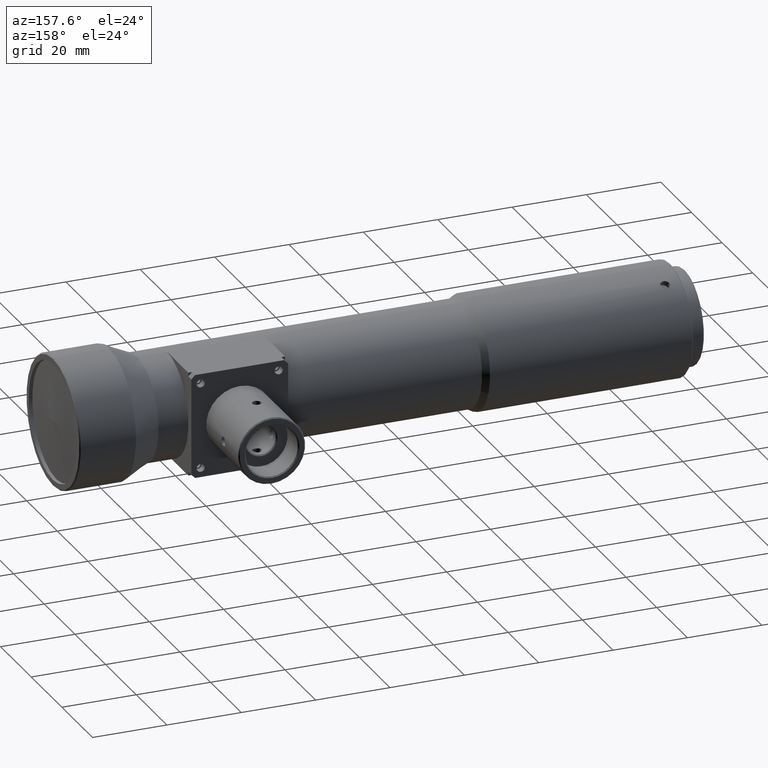
[diagram: clean part render]
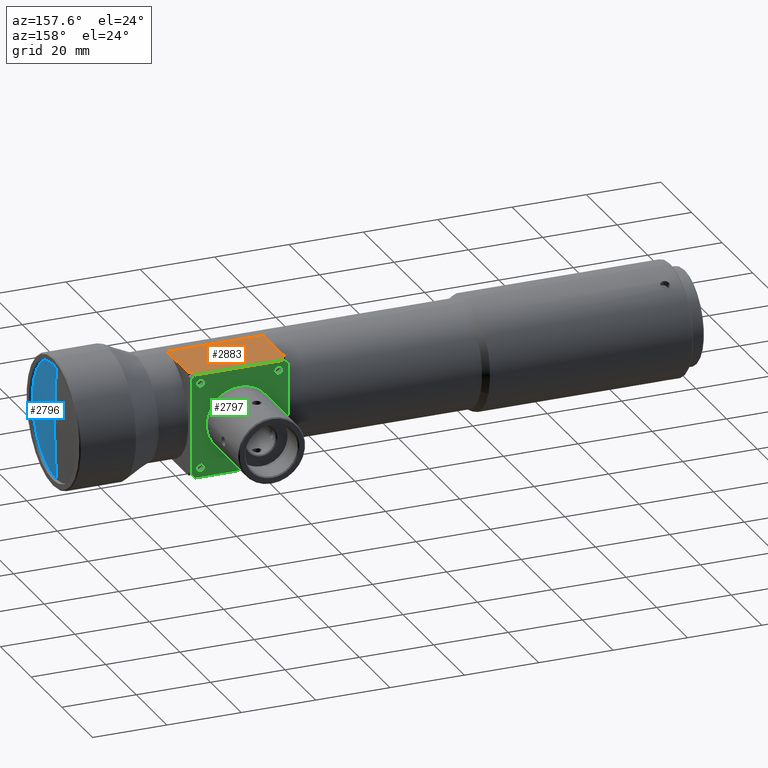
[diagram: same view with three faces highlighted in distinct colors, each labeled with its STEP entity id]
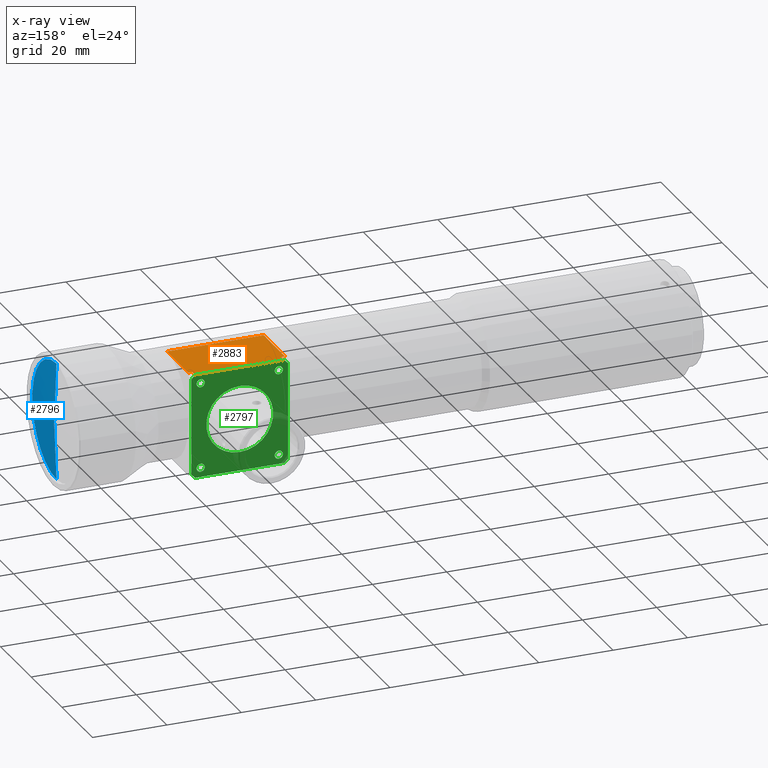
[diagram: x-ray of the same camera — body ghosted, the three highlighted faces saturated]
A machine part, auxiliary view with three faces highlighted in distinct colors.
The next image is the same camera in x-ray (body ghosted, the three faces saturated) — at least one of them is partly hidden behind the body in this view.
Their STEP definitions:

[orange] entity #2883 — the highlighted planar face has unit normal (0, 0, -1).
#29 = EDGE_CURVE ( 'NONE', #3908, #4086, #987, .T. ) ;
#36 = EDGE_CURVE ( 'NONE', #3993, #4086, #972, .T. ) ;
#37 = EDGE_CURVE ( 'NONE', #4080, #185, #969, .T. ) ;
#44 = EDGE_CURVE ( 'NONE', #3980, #3908, #962, .T. ) ;
#185 = VERTEX_POINT ( 'NONE', #2039 ) ;
#254 = FACE_OUTER_BOUND ( 'NONE', #1351, .T. ) ;
#460 = AXIS2_PLACEMENT_3D ( 'NONE', #3363, #3244, #3245 ) ;
#516 = EDGE_CURVE ( 'NONE', #4120, #3993, #1037, .T. ) ;
#551 = EDGE_CURVE ( 'NONE', #185, #4120, #1097, .T. ) ;
#553 = EDGE_CURVE ( 'NONE', #4002, #4080, #1050, .T. ) ;
#653 = EDGE_CURVE ( 'NONE', #3980, #4002, #1236, .T. ) ;
#937 = VECTOR ( 'NONE', #2784, 1000.000000000000000 ) ;
#958 = VECTOR ( 'NONE', #2282, 1000.000000000000000 ) ;
#962 = LINE ( 'NONE', #1895, #937 ) ;
#969 = LINE ( 'NONE', #2044, #958 ) ;
#972 = LINE ( 'NONE', #2168, #974 ) ;
#974 = VECTOR ( 'NONE', #2162, 1000.000000000000000 ) ;
#987 = LINE ( 'NONE', #2050, #988 ) ;
#988 = VECTOR ( 'NONE', #1929, 1000.000000000000000 ) ;
#1022 = VECTOR ( 'NONE', #2678, 1000.000000000000000 ) ;
#1037 = LINE ( 'NONE', #2721, #1115 ) ;
#1050 = LINE ( 'NONE', #2673, #1133 ) ;
#1097 = LINE ( 'NONE', #2679, #1022 ) ;
#1115 = VECTOR ( 'NONE', #2720, 1000.000000000000000 ) ;
#1133 = VECTOR ( 'NONE', #2663, 1000.000000000000000 ) ;
#1235 = VECTOR ( 'NONE', #2339, 1000.000000000000000 ) ;
#1236 = LINE ( 'NONE', #2341, #1235 ) ;
#1351 = EDGE_LOOP ( 'NONE', ( #1591, #1601, #1848, #1739, #1853, #1714, #1580, #1428 ) ) ;
#1428 = ORIENTED_EDGE ( 'NONE', *, *, #29, .F. ) ;
#1580 = ORIENTED_EDGE ( 'NONE', *, *, #36, .T. ) ;
#1591 = ORIENTED_EDGE ( 'NONE', *, *, #44, .F. ) ;
#1601 = ORIENTED_EDGE ( 'NONE', *, *, #653, .T. ) ;
#1714 = ORIENTED_EDGE ( 'NONE', *, *, #516, .T. ) ;
#1739 = ORIENTED_EDGE ( 'NONE', *, *, #37, .T. ) ;
#1848 = ORIENTED_EDGE ( 'NONE', *, *, #553, .T. ) ;
#1853 = ORIENTED_EDGE ( 'NONE', *, *, #551, .T. ) ;
#1895 = CARTESIAN_POINT ( 'NONE',  ( 2.300000000000001600, 7.000000000000000000, 14.00000000000000000 ) ) ;
#1929 = DIRECTION ( 'NONE',  ( -1.000000000000000000, 0.0000000000000000000, 0.0000000000000000000 ) ) ;
#2039 = CARTESIAN_POINT ( 'NONE',  ( -22.70000000300000000, 16.00000000000000000, 14.00000000000000000 ) ) ;
#2044 = CARTESIAN_POINT ( 'NONE',  ( -10.69999999999999900, 16.00000000000000000, 14.00000000000000000 ) ) ;
#2050 = CARTESIAN_POINT ( 'NONE',  ( -10.69999999999999900, 0.0000000000000000000, 14.00000000000000000 ) ) ;
#2162 = DIRECTION ( 'NONE',  ( 0.0000000000000000000, -1.000000000000000000, -0.0000000000000000000 ) ) ;
#2168 = CARTESIAN_POINT ( 'NONE',  ( -23.69999999999999900, 6.958000000000000200, 14.00000000000000000 ) ) ;
#2282 = DIRECTION ( 'NONE',  ( -1.000000000000000000, 0.0000000000000000000, 0.0000000000000000000 ) ) ;
#2339 = DIRECTION ( 'NONE',  ( -1.000000000000000000, 0.0000000000000000000, 0.0000000000000000000 ) ) ;
#2341 = CARTESIAN_POINT ( 'NONE',  ( -10.69999999999999900, 14.00000000000000000, 14.00000000000000000 ) ) ;
#2663 = DIRECTION ( 'NONE',  ( 0.0000000000000000000, 1.000000000000000000, 0.0000000000000000000 ) ) ;
#2673 = CARTESIAN_POINT ( 'NONE',  ( 1.300000000000000700, 15.00000000000000000, 14.00000000000000000 ) ) ;
#2678 = DIRECTION ( 'NONE',  ( 0.0000000000000000000, -1.000000000000000000, -0.0000000000000000000 ) ) ;
#2679 = CARTESIAN_POINT ( 'NONE',  ( -22.69999999999999900, 15.00000000000000000, 14.00000000000000000 ) ) ;
#2720 = DIRECTION ( 'NONE',  ( -1.000000000000000000, 0.0000000000000000000, 0.0000000000000000000 ) ) ;
#2721 = CARTESIAN_POINT ( 'NONE',  ( -10.69999999999999900, 14.00000000000000000, 14.00000000000000000 ) ) ;
#2784 = DIRECTION ( 'NONE',  ( 0.0000000000000000000, -1.000000000000000000, 0.0000000000000000000 ) ) ;
#2883 = ADVANCED_FACE ( 'NONE', ( #254 ), #3260, .F. ) ;
#3009 = CARTESIAN_POINT ( 'NONE',  ( 2.300000000000001600, -1.257110798002262500E-009, 14.00000000000000000 ) ) ;
#3140 = CARTESIAN_POINT ( 'NONE',  ( 2.300000000000003400, 14.00000000000000000, 14.00000000000000000 ) ) ;
#3150 = CARTESIAN_POINT ( 'NONE',  ( -23.70000000000000300, 14.00000000000000000, 14.00000000000000000 ) ) ;
#3167 = CARTESIAN_POINT ( 'NONE',  ( 1.300000000000000700, 14.00000000000000000, 14.00000000000000000 ) ) ;
#3169 = CARTESIAN_POINT ( 'NONE',  ( 1.300000003000000300, 16.00000000000000000, 14.00000000000000000 ) ) ;
#3185 = CARTESIAN_POINT ( 'NONE',  ( -22.69999999999999900, 14.00000000000000000, 14.00000000000000000 ) ) ;
#3223 = CARTESIAN_POINT ( 'NONE',  ( -23.69999999700000300, -1.257110798002262500E-009, 14.00000000000000000 ) ) ;
#3244 = DIRECTION ( 'NONE',  ( 0.0000000000000000000, 0.0000000000000000000, -1.000000000000000000 ) ) ;
#3245 = DIRECTION ( 'NONE',  ( 0.0000000000000000000, -1.000000000000000000, 0.0000000000000000000 ) ) ;
#3260 = PLANE ( 'NONE',  #460 ) ;
#3363 = CARTESIAN_POINT ( 'NONE',  ( 2.300000000000001600, 14.00000000000000000, 14.00000000000000000 ) ) ;
#3908 = VERTEX_POINT ( 'NONE', #3009 ) ;
#3980 = VERTEX_POINT ( 'NONE', #3140 ) ;
#3993 = VERTEX_POINT ( 'NONE', #3150 ) ;
#4002 = VERTEX_POINT ( 'NONE', #3167 ) ;
#4080 = VERTEX_POINT ( 'NONE', #3169 ) ;
#4086 = VERTEX_POINT ( 'NONE', #3223 ) ;
#4120 = VERTEX_POINT ( 'NONE', #3185 ) ;

[blue] entity #2796 — the highlighted conical surface has half-angle 87.69 deg.
#5 = VERTEX_POINT ( 'NONE', #2258 ) ;
#188 = VERTEX_POINT ( 'NONE', #2025 ) ;
#192 = VERTEX_POINT ( 'NONE', #2358 ) ;
#400 = FACE_OUTER_BOUND ( 'NONE', #1385, .T. ) ;
#685 = EDGE_CURVE ( 'NONE', #5, #188, #1208, .T. ) ;
#785 = EDGE_CURVE ( 'NONE', #192, #188, #1196, .T. ) ;
#808 = EDGE_CURVE ( 'NONE', #192, #5, #1180, .T. ) ;
#897 = AXIS2_PLACEMENT_3D ( 'NONE', #2973, #2949, #2986 ) ;
#905 = AXIS2_PLACEMENT_3D ( 'NONE', #2103, #2102, #2101 ) ;
#1175 = VECTOR ( 'NONE', #3290, 1000.000000000000100 ) ;
#1180 = LINE ( 'NONE', #3284, #1175 ) ;
#1196 = LINE ( 'NONE', #3472, #1197 ) ;
#1197 = VECTOR ( 'NONE', #3170, 1000.000000000000100 ) ;
#1208 = CIRCLE ( 'NONE', #905, 15.75000000000000000 ) ;
#1385 = EDGE_LOOP ( 'NONE', ( #1786, #1781, #1866 ) ) ;
#1781 = ORIENTED_EDGE ( 'NONE', *, *, #785, .T. ) ;
#1786 = ORIENTED_EDGE ( 'NONE', *, *, #808, .F. ) ;
#1866 = ORIENTED_EDGE ( 'NONE', *, *, #685, .F. ) ;
#2025 = CARTESIAN_POINT ( 'NONE',  ( 31.98690305889818200, 0.0000000000000000000, 15.75000000000000000 ) ) ;
#2101 = DIRECTION ( 'NONE',  ( 0.0000000000000000000, 0.0000000000000000000, 1.000000000000000000 ) ) ;
#2102 = DIRECTION ( 'NONE',  ( -1.000000000000000000, -0.0000000000000000000, -0.0000000000000000000 ) ) ;
#2103 = CARTESIAN_POINT ( 'NONE',  ( 31.98690305889818200, 0.0000000000000000000, 0.0000000000000000000 ) ) ;
#2258 = CARTESIAN_POINT ( 'NONE',  ( 31.98690305889818200, 1.928818708657081300E-015, -15.75000000000000000 ) ) ;
#2358 = CARTESIAN_POINT ( 'NONE',  ( 32.62232883581750500, 1.409462824231155800E-015, 0.0000000000000000000 ) ) ;
#2795 = CONICAL_SURFACE ( 'NONE', #897, 24786.52987034813500, 1.530473700953873100 ) ;
#2796 = ADVANCED_FACE ( 'NONE', ( #400 ), #2795, .T. ) ;
#2949 = DIRECTION ( 'NONE',  ( -1.000000000000000000, -0.0000000000000000000, -0.0000000000000000000 ) ) ;
#2973 = CARTESIAN_POINT ( 'NONE',  ( -967.3776711641825200, 0.0000000000000000000, 0.0000000000000000000 ) ) ;
#2986 = DIRECTION ( 'NONE',  ( 0.0000000000000000000, 0.0000000000000000000, 1.000000000000000000 ) ) ;
#3170 = DIRECTION ( 'NONE',  ( -0.04031169987461043900, 0.0000000000000000000, 0.9991871530665409300 ) ) ;
#3284 = CARTESIAN_POINT ( 'NONE',  ( 32.62232883581750500, 1.726094136211873400E-031, -1.409462824231155800E-015 ) ) ;
#3290 = DIRECTION ( 'NONE',  ( -0.04031169987461043900, 1.223651348752095700E-016, -0.9991871530665409300 ) ) ;
#3472 = CARTESIAN_POINT ( 'NONE',  ( 32.62232883581750500, 0.0000000000000000000, 1.409462824231155800E-015 ) ) ;

[green] entity #2797 — the highlighted planar face has unit normal (0, -1, 0).
#13 = FACE_BOUND ( 'NONE', #3894, .T. ) ;
#37 = EDGE_CURVE ( 'NONE', #4080, #185, #969, .T. ) ;
#40 = EDGE_CURVE ( 'NONE', #3973, #105, #971, .T. ) ;
#48 = EDGE_CURVE ( 'NONE', #4115, #4119, #977, .T. ) ;
#53 = EDGE_CURVE ( 'NONE', #3913, #3954, #926, .T. ) ;
#105 = VERTEX_POINT ( 'NONE', #1982 ) ;
#159 = VERTEX_POINT ( 'NONE', #1949 ) ;
#185 = VERTEX_POINT ( 'NONE', #2039 ) ;
#381 = FACE_OUTER_BOUND ( 'NONE', #3921, .T. ) ;
#399 = FACE_BOUND ( 'NONE', #1444, .T. ) ;
#412 = VERTEX_POINT ( 'NONE', #1910 ) ;
#426 = EDGE_CURVE ( 'NONE', #4109, #412, #975, .T. ) ;
#432 = AXIS2_PLACEMENT_3D ( 'NONE', #3042, #3035, #3348 ) ;
#507 = EDGE_CURVE ( 'NONE', #3913, #105, #976, .T. ) ;
#534 = EDGE_CURVE ( 'NONE', #4083, #3909, #1056, .T. ) ;
#535 = EDGE_CURVE ( 'NONE', #3937, #3947, #1042, .T. ) ;
#536 = EDGE_CURVE ( 'NONE', #3934, #3986, #1090, .T. ) ;
#547 = EDGE_CURVE ( 'NONE', #4115, #3954, #1045, .T. ) ;
#590 = EDGE_CURVE ( 'NONE', #3947, #3937, #1039, .T. ) ;
#594 = EDGE_CURVE ( 'NONE', #3909, #4083, #1070, .T. ) ;
#633 = EDGE_CURVE ( 'NONE', #3986, #3934, #1113, .T. ) ;
#643 = EDGE_CURVE ( 'NONE', #3973, #185, #1021, .T. ) ;
#646 = EDGE_CURVE ( 'NONE', #159, #3912, #1206, .T. ) ;
#661 = EDGE_CURVE ( 'NONE', #3912, #159, #1310, .T. ) ;
#713 = EDGE_CURVE ( 'NONE', #412, #4109, #1255, .T. ) ;
#742 = AXIS2_PLACEMENT_3D ( 'NONE', #2356, #2357, #2355 ) ;
#743 = AXIS2_PLACEMENT_3D ( 'NONE', #2388, #2387, #2386 ) ;
#755 = AXIS2_PLACEMENT_3D ( 'NONE', #2448, #2447, #2446 ) ;
#757 = AXIS2_PLACEMENT_3D ( 'NONE', #2457, #2456, #2455 ) ;
#767 = AXIS2_PLACEMENT_3D ( 'NONE', #2700, #2696, #2698 ) ;
#768 = AXIS2_PLACEMENT_3D ( 'NONE', #2704, #2702, #2701 ) ;
#769 = AXIS2_PLACEMENT_3D ( 'NONE', #2710, #2709, #2707 ) ;
#835 = AXIS2_PLACEMENT_3D ( 'NONE', #1891, #2794, #2793 ) ;
#873 = AXIS2_PLACEMENT_3D ( 'NONE', #2305, #2303, #2304 ) ;
#892 = EDGE_CURVE ( 'NONE', #4080, #4119, #1184, .T. ) ;
#895 = AXIS2_PLACEMENT_3D ( 'NONE', #3171, #3726, #3093 ) ;
#921 = VECTOR ( 'NONE', #2133, 1000.000000000000000 ) ;
#926 = LINE ( 'NONE', #1996, #921 ) ;
#935 = VECTOR ( 'NONE', #2274, 1000.000000000000000 ) ;
#941 = VECTOR ( 'NONE', #1920, 1000.000000000000000 ) ;
#947 = FACE_BOUND ( 'NONE', #1453, .T. ) ;
#958 = VECTOR ( 'NONE', #2282, 1000.000000000000000 ) ;
#969 = LINE ( 'NONE', #2044, #958 ) ;
#971 = LINE ( 'NONE', #1942, #941 ) ;
#975 = CIRCLE ( 'NONE', #835, 9.000000000000001800 ) ;
#976 = LINE ( 'NONE', #2724, #1081 ) ;
#977 = LINE ( 'NONE', #2045, #935 ) ;
#1005 = FACE_BOUND ( 'NONE', #1376, .T. ) ;
#1021 = LINE ( 'NONE', #2372, #1105 ) ;
#1039 = CIRCLE ( 'NONE', #757, 1.100000000000000300 ) ;
#1042 = CIRCLE ( 'NONE', #768, 1.100000000000000300 ) ;
#1045 = LINE ( 'NONE', #2686, #1086 ) ;
#1056 = CIRCLE ( 'NONE', #769, 1.099999999999998500 ) ;
#1070 = CIRCLE ( 'NONE', #755, 1.099999999999998500 ) ;
#1081 = VECTOR ( 'NONE', #2723, 999.9999999999998900 ) ;
#1086 = VECTOR ( 'NONE', #2712, 999.9999999999998900 ) ;
#1090 = CIRCLE ( 'NONE', #767, 1.100000000000000300 ) ;
#1105 = VECTOR ( 'NONE', #2366, 999.9999999999998900 ) ;
#1113 = CIRCLE ( 'NONE', #743, 1.100000000000000300 ) ;
#1178 = FACE_BOUND ( 'NONE', #1362, .T. ) ;
#1184 = LINE ( 'NONE', #2980, #1207 ) ;
#1206 = CIRCLE ( 'NONE', #742, 1.099999999999998500 ) ;
#1207 = VECTOR ( 'NONE', #2960, 999.9999999999998900 ) ;
#1255 = CIRCLE ( 'NONE', #432, 9.000000000000001800 ) ;
#1310 = CIRCLE ( 'NONE', #873, 1.099999999999998500 ) ;
#1362 = EDGE_LOOP ( 'NONE', ( #1679, #1640 ) ) ;
#1376 = EDGE_LOOP ( 'NONE', ( #1701, #1643 ) ) ;
#1410 = ORIENTED_EDGE ( 'NONE', *, *, #713, .T. ) ;
#1444 = EDGE_LOOP ( 'NONE', ( #1631, #1608 ) ) ;
#1453 = EDGE_LOOP ( 'NONE', ( #1410, #1660 ) ) ;
#1578 = ORIENTED_EDGE ( 'NONE', *, *, #53, .F. ) ;
#1608 = ORIENTED_EDGE ( 'NONE', *, *, #590, .F. ) ;
#1611 = ORIENTED_EDGE ( 'NONE', *, *, #534, .F. ) ;
#1618 = ORIENTED_EDGE ( 'NONE', *, *, #37, .F. ) ;
#1631 = ORIENTED_EDGE ( 'NONE', *, *, #535, .F. ) ;
#1640 = ORIENTED_EDGE ( 'NONE', *, *, #633, .F. ) ;
#1643 = ORIENTED_EDGE ( 'NONE', *, *, #646, .F. ) ;
#1660 = ORIENTED_EDGE ( 'NONE', *, *, #426, .T. ) ;
#1679 = ORIENTED_EDGE ( 'NONE', *, *, #536, .F. ) ;
#1701 = ORIENTED_EDGE ( 'NONE', *, *, #661, .F. ) ;
#1720 = ORIENTED_EDGE ( 'NONE', *, *, #594, .F. ) ;
#1751 = ORIENTED_EDGE ( 'NONE', *, *, #892, .T. ) ;
#1752 = ORIENTED_EDGE ( 'NONE', *, *, #547, .T. ) ;
#1753 = ORIENTED_EDGE ( 'NONE', *, *, #48, .F. ) ;
#1763 = ORIENTED_EDGE ( 'NONE', *, *, #40, .F. ) ;
#1813 = ORIENTED_EDGE ( 'NONE', *, *, #643, .T. ) ;
#1818 = ORIENTED_EDGE ( 'NONE', *, *, #507, .T. ) ;
#1891 = CARTESIAN_POINT ( 'NONE',  ( -10.69999999999999900, 16.00000000000000000, 0.0000000000000000000 ) ) ;
#1910 = CARTESIAN_POINT ( 'NONE',  ( -10.69999999999999900, 16.00000000000000000, 9.000000000000001800 ) ) ;
#1920 = DIRECTION ( 'NONE',  ( 0.0000000000000000000, -0.0000000000000000000, -1.000000000000000000 ) ) ;
#1942 = CARTESIAN_POINT ( 'NONE',  ( -23.69999999999999900, 16.00000000000000000, 0.0000000000000000000 ) ) ;
#1949 = CARTESIAN_POINT ( 'NONE',  ( -21.19999999999999900, 16.00000000000000000, 12.59999999999999800 ) ) ;
#1982 = CARTESIAN_POINT ( 'NONE',  ( -23.69999999999999900, 16.00000000000000000, -12.99999999800000000 ) ) ;
#1996 = CARTESIAN_POINT ( 'NONE',  ( -10.69999999999999900, 16.00000000000000000, -14.00000000000000000 ) ) ;
#2039 = CARTESIAN_POINT ( 'NONE',  ( -22.70000000300000000, 16.00000000000000000, 14.00000000000000000 ) ) ;
#2044 = CARTESIAN_POINT ( 'NONE',  ( -10.69999999999999900, 16.00000000000000000, 14.00000000000000000 ) ) ;
#2045 = CARTESIAN_POINT ( 'NONE',  ( 2.300000000000001600, 16.00000000000000000, 0.0000000000000000000 ) ) ;
#2133 = DIRECTION ( 'NONE',  ( 1.000000000000000000, -0.0000000000000000000, -0.0000000000000000000 ) ) ;
#2274 = DIRECTION ( 'NONE',  ( 0.0000000000000000000, 0.0000000000000000000, 1.000000000000000000 ) ) ;
#2282 = DIRECTION ( 'NONE',  ( -1.000000000000000000, 0.0000000000000000000, 0.0000000000000000000 ) ) ;
#2303 = DIRECTION ( 'NONE',  ( 0.0000000000000000000, 1.000000000000000000, 0.0000000000000000000 ) ) ;
#2304 = DIRECTION ( 'NONE',  ( 0.0000000000000000000, 0.0000000000000000000, -1.000000000000000000 ) ) ;
#2305 = CARTESIAN_POINT ( 'NONE',  ( -21.19999999999999900, 16.00000000000000000, 11.50000000000000000 ) ) ;
#2355 = DIRECTION ( 'NONE',  ( 0.0000000000000000000, 0.0000000000000000000, -1.000000000000000000 ) ) ;
#2356 = CARTESIAN_POINT ( 'NONE',  ( -21.19999999999999900, 16.00000000000000000, 11.50000000000000000 ) ) ;
#2357 = DIRECTION ( 'NONE',  ( 0.0000000000000000000, 1.000000000000000000, 0.0000000000000000000 ) ) ;
#2366 = DIRECTION ( 'NONE',  ( 0.7071067811865482400, 0.0000000000000000000, 0.7071067811865469100 ) ) ;
#2372 = CARTESIAN_POINT ( 'NONE',  ( -23.19999999999999900, 16.00000000000000000, 13.50000000000000200 ) ) ;
#2386 = DIRECTION ( 'NONE',  ( 0.0000000000000000000, 0.0000000000000000000, -1.000000000000000000 ) ) ;
#2387 = DIRECTION ( 'NONE',  ( 0.0000000000000000000, 1.000000000000000000, 0.0000000000000000000 ) ) ;
#2388 = CARTESIAN_POINT ( 'NONE',  ( -21.19999999999999900, 16.00000000000000000, -11.50000000000000000 ) ) ;
#2446 = DIRECTION ( 'NONE',  ( 0.0000000000000000000, 0.0000000000000000000, -1.000000000000000000 ) ) ;
#2447 = DIRECTION ( 'NONE',  ( 0.0000000000000000000, 1.000000000000000000, 0.0000000000000000000 ) ) ;
#2448 = CARTESIAN_POINT ( 'NONE',  ( -0.1999999999999987900, 16.00000000000000000, 11.50000000000000000 ) ) ;
#2455 = DIRECTION ( 'NONE',  ( 0.0000000000000000000, 0.0000000000000000000, -1.000000000000000000 ) ) ;
#2456 = DIRECTION ( 'NONE',  ( 0.0000000000000000000, 1.000000000000000000, 0.0000000000000000000 ) ) ;
#2457 = CARTESIAN_POINT ( 'NONE',  ( -0.1999999999999987900, 16.00000000000000000, -11.50000000000000000 ) ) ;
#2686 = CARTESIAN_POINT ( 'NONE',  ( 1.800000000000001200, 16.00000000000000000, -13.50000000000000200 ) ) ;
#2696 = DIRECTION ( 'NONE',  ( 0.0000000000000000000, 1.000000000000000000, 0.0000000000000000000 ) ) ;
#2698 = DIRECTION ( 'NONE',  ( 0.0000000000000000000, 0.0000000000000000000, -1.000000000000000000 ) ) ;
#2700 = CARTESIAN_POINT ( 'NONE',  ( -21.19999999999999900, 16.00000000000000000, -11.50000000000000000 ) ) ;
#2701 = DIRECTION ( 'NONE',  ( 0.0000000000000000000, 0.0000000000000000000, -1.000000000000000000 ) ) ;
#2702 = DIRECTION ( 'NONE',  ( 0.0000000000000000000, 1.000000000000000000, 0.0000000000000000000 ) ) ;
#2704 = CARTESIAN_POINT ( 'NONE',  ( -0.1999999999999987900, 16.00000000000000000, -11.50000000000000000 ) ) ;
#2707 = DIRECTION ( 'NONE',  ( 0.0000000000000000000, 0.0000000000000000000, -1.000000000000000000 ) ) ;
#2709 = DIRECTION ( 'NONE',  ( 0.0000000000000000000, 1.000000000000000000, 0.0000000000000000000 ) ) ;
#2710 = CARTESIAN_POINT ( 'NONE',  ( -0.1999999999999987900, 16.00000000000000000, 11.50000000000000000 ) ) ;
#2712 = DIRECTION ( 'NONE',  ( -0.7071067811865482400, 0.0000000000000000000, -0.7071067811865469100 ) ) ;
#2723 = DIRECTION ( 'NONE',  ( -0.7071067811865482400, 0.0000000000000000000, 0.7071067811865469100 ) ) ;
#2724 = CARTESIAN_POINT ( 'NONE',  ( -23.19999999999999900, 16.00000000000000000, -13.50000000000000200 ) ) ;
#2793 = DIRECTION ( 'NONE',  ( 0.0000000000000000000, 0.0000000000000000000, 1.000000000000000000 ) ) ;
#2794 = DIRECTION ( 'NONE',  ( 0.0000000000000000000, -1.000000000000000000, 0.0000000000000000000 ) ) ;
#2797 = ADVANCED_FACE ( 'NONE', ( #947, #1005, #1178, #399, #13, #381 ), #2987, .F. ) ;
#2960 = DIRECTION ( 'NONE',  ( 0.7071067811865482400, 0.0000000000000000000, -0.7071067811865469100 ) ) ;
#2980 = CARTESIAN_POINT ( 'NONE',  ( 1.800000000000001200, 16.00000000000000000, 13.50000000000000200 ) ) ;
#2987 = PLANE ( 'NONE',  #895 ) ;
#3007 = CARTESIAN_POINT ( 'NONE',  ( -0.1999999999999989300, 16.00000000000000000, 12.59999999999999800 ) ) ;
#3035 = DIRECTION ( 'NONE',  ( 0.0000000000000000000, -1.000000000000000000, 0.0000000000000000000 ) ) ;
#3042 = CARTESIAN_POINT ( 'NONE',  ( -10.69999999999999900, 16.00000000000000000, 0.0000000000000000000 ) ) ;
#3053 = CARTESIAN_POINT ( 'NONE',  ( -21.19999999999999900, 16.00000000000000000, 10.40000000000000200 ) ) ;
#3093 = DIRECTION ( 'NONE',  ( 0.0000000000000000000, 0.0000000000000000000, 1.000000000000000000 ) ) ;
#3097 = CARTESIAN_POINT ( 'NONE',  ( -0.1999999999999987900, 16.00000000000000000, -12.60000000000000000 ) ) ;
#3111 = CARTESIAN_POINT ( 'NONE',  ( -23.69999999999999900, 16.00000000000000000, 12.99999999800000200 ) ) ;
#3125 = CARTESIAN_POINT ( 'NONE',  ( -0.1999999999999987900, 16.00000000000000000, 10.40000000000000200 ) ) ;
#3138 = CARTESIAN_POINT ( 'NONE',  ( 2.300000000000001600, 16.00000000000000000, 12.99999999800000200 ) ) ;
#3139 = CARTESIAN_POINT ( 'NONE',  ( -21.19999999999999900, 16.00000000000000000, -12.60000000000000000 ) ) ;
#3142 = CARTESIAN_POINT ( 'NONE',  ( -21.19999999999999900, 16.00000000000000000, -10.40000000000000000 ) ) ;
#3169 = CARTESIAN_POINT ( 'NONE',  ( 1.300000003000000300, 16.00000000000000000, 14.00000000000000000 ) ) ;
#3171 = CARTESIAN_POINT ( 'NONE',  ( 2.300000000000001600, 16.00000000000000000, -14.00000000000000000 ) ) ;
#3191 = CARTESIAN_POINT ( 'NONE',  ( 1.300000003000000300, 16.00000000000000000, -14.00000000000000000 ) ) ;
#3195 = CARTESIAN_POINT ( 'NONE',  ( -0.1999999999999989300, 16.00000000000000000, -10.40000000000000000 ) ) ;
#3249 = CARTESIAN_POINT ( 'NONE',  ( -22.70000000300000000, 16.00000000000000000, -14.00000000000000000 ) ) ;
#3327 = CARTESIAN_POINT ( 'NONE',  ( 2.300000000000001600, 16.00000000000000000, -12.99999999800000000 ) ) ;
#3344 = CARTESIAN_POINT ( 'NONE',  ( -10.70000000000000100, 16.00000000000000000, -9.000000000000001800 ) ) ;
#3348 = DIRECTION ( 'NONE',  ( 0.0000000000000000000, 0.0000000000000000000, 1.000000000000000000 ) ) ;
#3726 = DIRECTION ( 'NONE',  ( 0.0000000000000000000, -1.000000000000000000, 0.0000000000000000000 ) ) ;
#3894 = EDGE_LOOP ( 'NONE', ( #1611, #1720 ) ) ;
#3909 = VERTEX_POINT ( 'NONE', #3007 ) ;
#3912 = VERTEX_POINT ( 'NONE', #3053 ) ;
#3913 = VERTEX_POINT ( 'NONE', #3249 ) ;
#3921 = EDGE_LOOP ( 'NONE', ( #1752, #1578, #1818, #1763, #1813, #1618, #1751, #1753 ) ) ;
#3934 = VERTEX_POINT ( 'NONE', #3139 ) ;
#3937 = VERTEX_POINT ( 'NONE', #3097 ) ;
#3947 = VERTEX_POINT ( 'NONE', #3195 ) ;
#3954 = VERTEX_POINT ( 'NONE', #3191 ) ;
#3973 = VERTEX_POINT ( 'NONE', #3111 ) ;
#3986 = VERTEX_POINT ( 'NONE', #3142 ) ;
#4080 = VERTEX_POINT ( 'NONE', #3169 ) ;
#4083 = VERTEX_POINT ( 'NONE', #3125 ) ;
#4109 = VERTEX_POINT ( 'NONE', #3344 ) ;
#4115 = VERTEX_POINT ( 'NONE', #3327 ) ;
#4119 = VERTEX_POINT ( 'NONE', #3138 ) ;